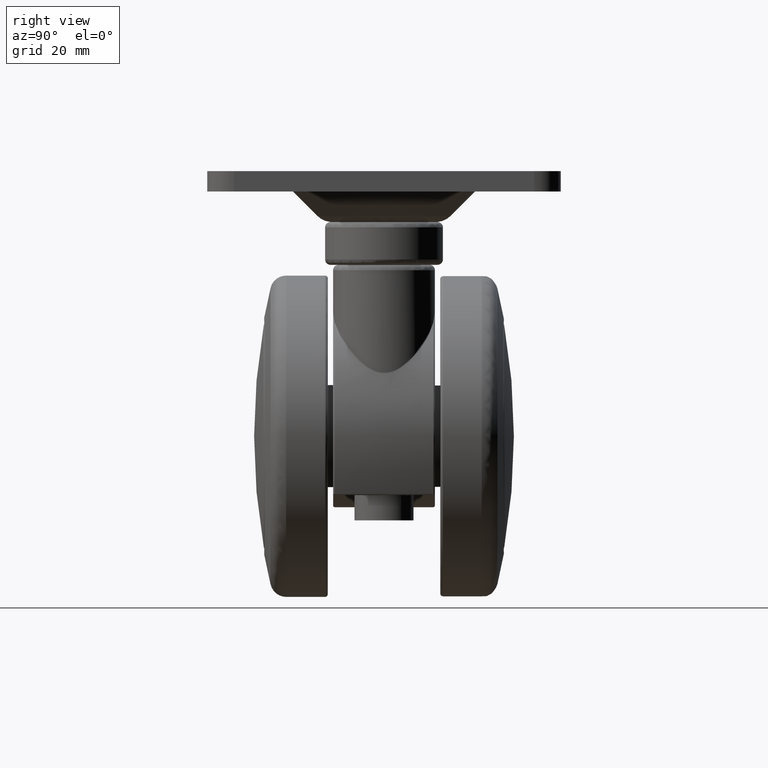
[diagram: clean part render]
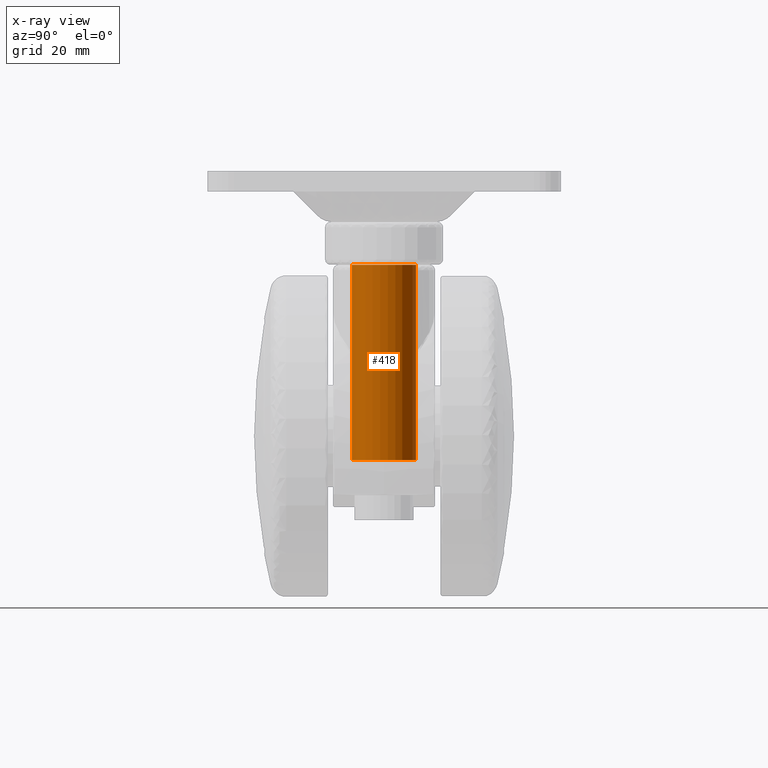
[diagram: x-ray — body ghosted, one internal face saturated and labeled with its STEP entity id]
A machine part, right view, then the same camera in x-ray: the body is ghosted and one INTERNAL B-rep face — a face not visible from any outside direction — is saturated and labeled: STEP entity #418.
In plain terms, the highlighted cylindrical surface (edge-blend (fillet) strip) has radius 6 mm, axis along (-0, -0, -1).
Its self-contained STEP definition (entity closure, byte-faithful):
#418=ADVANCED_FACE('',(#2686),#2685,.T.);
#2685=CYLINDRICAL_SURFACE('',#7382,6.00000000000E+00);
#2686=FACE_OUTER_BOUND('',#7383,.T.);
#7379=CARTESIAN_POINT('',(-7.03908846277E-27,3.61000003815E+01,1.27260182842E-13));
#7380=DIRECTION('',(-6.79383115546E-30,1.00000000000E+00,3.49148133884E-15));
#7381=DIRECTION('',(-9.99200722163E-16,-3.49148133884E-15,1.00000000000E+00));
#7382=AXIS2_PLACEMENT_3D('',#7379,#7380,#7381);
#7383=EDGE_LOOP('',(#8455,#8456,#8457,#8458));
#8455=ORIENTED_EDGE('',*,*,#9002,.T.);
#8456=ORIENTED_EDGE('',*,*,#9003,.F.);
#8457=ORIENTED_EDGE('',*,*,#8904,.T.);
#8458=ORIENTED_EDGE('',*,*,#9004,.T.);
#8904=EDGE_CURVE('',#11872,#11871,#11879,.T.);
#9002=EDGE_CURVE('',#12508,#12507,#12527,.T.);
#9003=EDGE_CURVE('',#11872,#12507,#12533,.T.);
#9004=EDGE_CURVE('',#11871,#12508,#12539,.T.);
#11871=VERTEX_POINT('',#14909);
#11872=VERTEX_POINT('',#14910);
#11879=CIRCLE('',#14918,6.00000000000E+00);
#12507=VERTEX_POINT('',#15299);
#12508=VERTEX_POINT('',#15300);
#12527=CIRCLE('',#15312,6.00000000000E+00);
#12533=(BOUNDED_CURVE() B_SPLINE_CURVE(1,(#15313,#15314),.UNSPECIFIED.,.F.,.F.) B_SPLINE_CURVE_WITH_KNOTS((2,2),(8.33333335810E-02,9.16666666255E-01),.UNSPECIFIED.) CURVE() GEOMETRIC_REPRESENTATION_ITEM() RATIONAL_B_SPLINE_CURVE((1.00000000000E+00,1.00000000000E+00)) REPRESENTATION_ITEM('') );
#12539=(BOUNDED_CURVE() B_SPLINE_CURVE(1,(#15315,#15316),.UNSPECIFIED.,.F.,.F.) B_SPLINE_CURVE_WITH_KNOTS((2,2),(8.33333333333E-02,9.16666666667E-01),.UNSPECIFIED.) CURVE() GEOMETRIC_REPRESENTATION_ITEM() RATIONAL_B_SPLINE_CURVE((7.50000000000E-01,7.50000000000E-01)) REPRESENTATION_ITEM('') );
#14909=CARTESIAN_POINT('',(-2.96059473233E-16,1.75000000000E+01,-6.00000000000E+00));
#14910=CARTESIAN_POINT('',(-7.03908846277E-27,1.75000000000E+01,6.00000000000E+00));
#14915=CARTESIAN_POINT('',(-7.03908846277E-27,1.75000000000E+01,1.27260182842E-13));
#14916=DIRECTION('',(0.00000000000E+00,1.00000000000E+00,-0.00000000000E+00));
#14917=DIRECTION('',(-1.22460635382E-16,0.00000000000E+00,1.00000000000E+00));
#14918=AXIS2_PLACEMENT_3D('',#14915,#14916,#14917);
#15299=CARTESIAN_POINT('',(-5.92118946467E-15,5.40000000000E+01,6.00000000000E+00));
#15300=CARTESIAN_POINT('',(5.99520433298E-15,5.40000000000E+01,-6.00000000000E+00));
#15309=CARTESIAN_POINT('',(0.00000000000E+00,5.40000000000E+01,2.08166817117E-13));
#15310=DIRECTION('',(6.85501455377E-30,-1.00000000000E+00,-3.55271367880E-15));
#15311=DIRECTION('',(8.76740086780E-16,3.55271367880E-15,-1.00000000000E+00));
#15312=AXIS2_PLACEMENT_3D('',#15309,#15310,#15311);
#15313=CARTESIAN_POINT('',(-5.99520433298E-15,1.75000000108E+01,6.00000000000E+00));
#15314=CARTESIAN_POINT('',(-5.99520433298E-15,5.39999999820E+01,6.00000000000E+00));
#15315=CARTESIAN_POINT('',(5.32907051820E-15,1.75000000000E+01,-6.00000000000E+00));
#15316=CARTESIAN_POINT('',(5.32907051820E-15,5.40000000000E+01,-6.00000000000E+00));